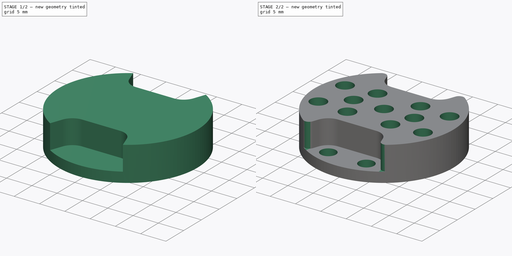
[diagram: build sequence overview — one tinted view per stage of 2, left to right]
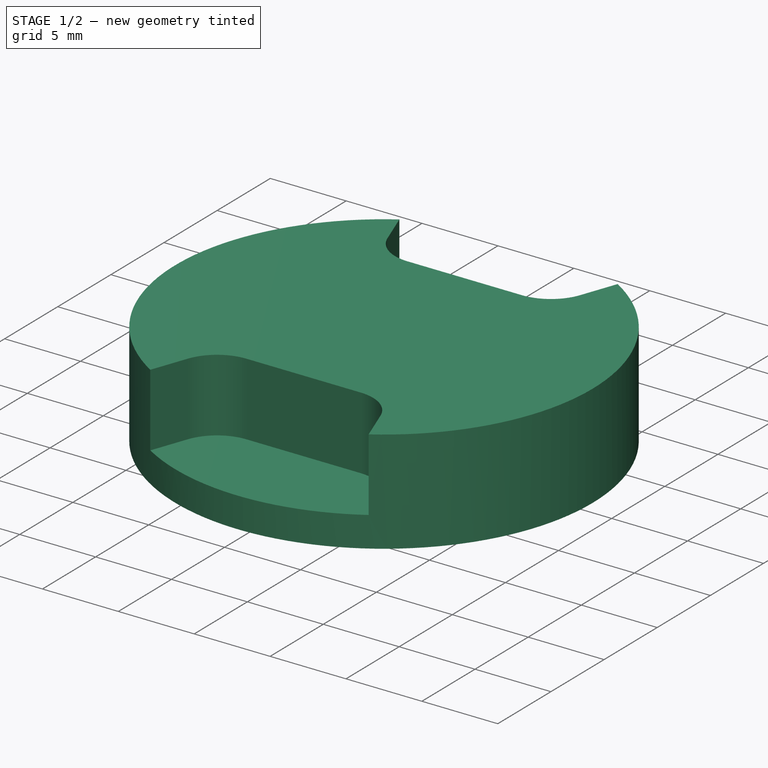
[diagram: stage 1 of 2 — iso view after this stage's code; geometry added in this stage tinted green]
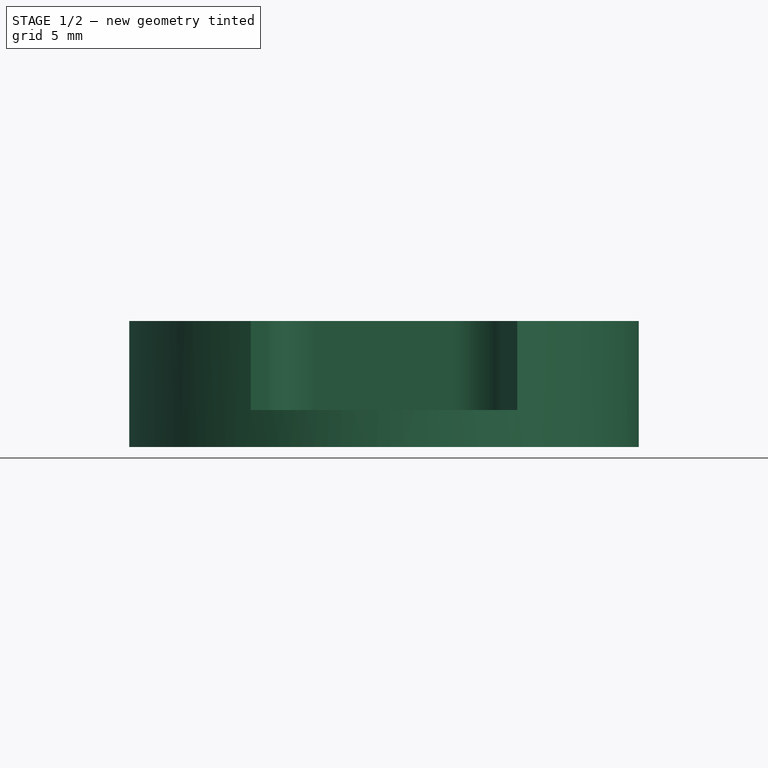
[diagram: stage 1 of 2 — front view after this stage's code; geometry added in this stage tinted green]
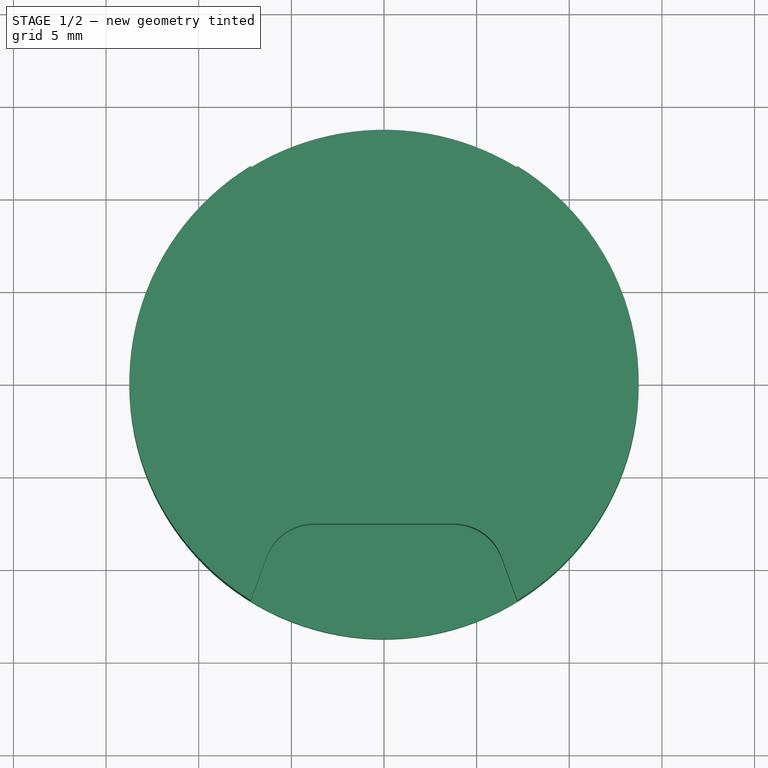
[diagram: stage 1 of 2 — top view after this stage's code; geometry added in this stage tinted green]
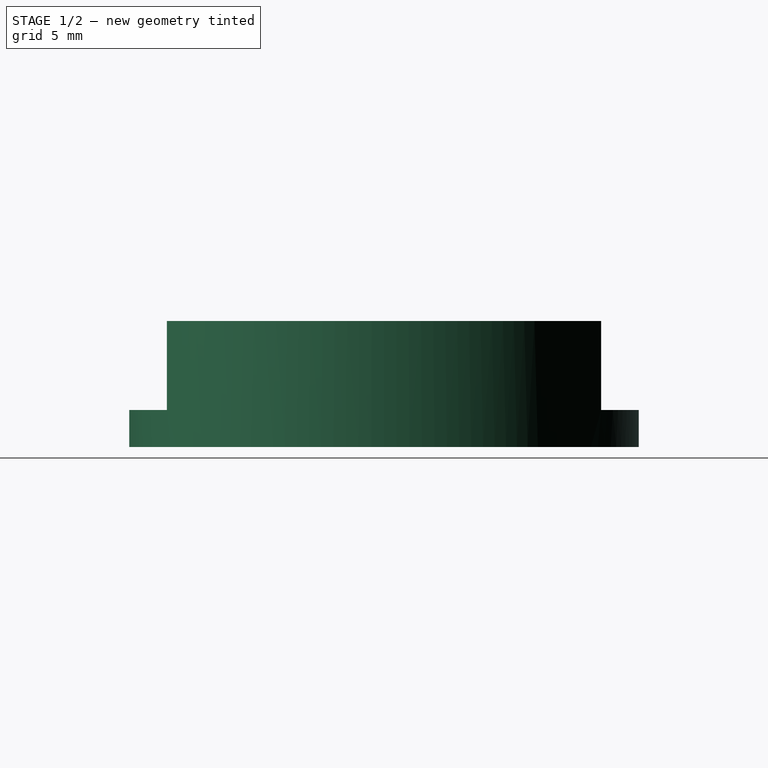
[diagram: stage 1 of 2 — right view after this stage's code; geometry added in this stage tinted green]
FCSTD DOCUMENT  (FreeCAD 0.20R29177 +426 (Git))
Label: top_horn
License: All rights reserved
LicenseURL: http://en.wikipedia.org/wiki/All_rights_reserved
objects: Sketcher::SketchObject×3, PartDesign::Pocket×2, PartDesign::Pad×1, PartDesign::Fillet×1, PartDesign::Body×1
note: 12 computed .brp shape members not serialized (recipe doc carries the construction recipe); baked Part::Feature solids carry a one-line shape summary decoded from their .brp

FEATURE [Sketcher::SketchObject] Sketch
  FullyConstrained = true
  MapMode = 5
  Support = -> [XY_Plane]
  sketch-geometry (1):
    g0: Circle CenterX=0 CenterY=0 CenterZ=0 NormalX=0 NormalY=0 NormalZ=1 AngleXU=0 Radius=13.75
  constraints (2):
    c: Coincident(g0,g-1)
    c: Diameter(g0) = 27.5
FEATURE [PartDesign::Pad] Pad
  Direction = (0,0,1)
  Length = 6.8
  Length2 = 10
  Profile = -> Sketch
  ReferenceAxis = -> Sketch [N_Axis]
  Type = 0
FEATURE [Sketcher::SketchObject] Sketch001
  ExternalGeometry = -> [Pad]
  FullyConstrained = true
  MapMode = 5
  Placement = pos=(0,0,6.8) rot=(0,0,1;0rad)
  Support = -> [Pad]
  sketch-geometry (18):
    g0: Circle CenterX=0 CenterY=0 CenterZ=0 NormalX=0 NormalY=0 NormalZ=1 AngleXU=0 Radius=11
    g1: LineSegment StartX=-3.76222 StartY=10.3366 StartZ=0 EndX=3.76222 EndY=-10.3366 EndZ=0
    g2: LineSegment StartX=3.76222 StartY=10.3366 StartZ=0 EndX=-3.76222 EndY=-10.3366 EndZ=0
    g3: LineSegment StartX=-3.76222 StartY=10.3366 StartZ=0 EndX=3.76222 EndY=10.3366 EndZ=0
    g4: ArcOfCircle CenterX=-3.76222 CenterY=10.3366 CenterZ=0 NormalX=0 NormalY=0 NormalZ=1 AngleXU=0 Radius=2.75 StartAngle=3.49066 EndAngle=4.71239
    g5: ArcOfCircle CenterX=3.76222 CenterY=10.3366 CenterZ=0 NormalX=0 NormalY=0 NormalZ=1 AngleXU=0 Radius=2.75 StartAngle=4.71239 EndAngle=5.93412
    g6: LineSegment StartX=-7.19192 StartY=11.7192 StartZ=0 EndX=-6.34638 EndY=9.39606 EndZ=0
    g7: LineSegment StartX=6.34638 StartY=9.39606 StartZ=0 EndX=7.19192 EndY=11.7192 EndZ=0
    g8: LineSegment StartX=-6.34638 StartY=-9.39606 StartZ=0 EndX=-7.19192 EndY=-11.7192 EndZ=0
    g9: LineSegment StartX=6.34638 StartY=-9.39606 StartZ=0 EndX=7.19192 EndY=-11.7192 EndZ=0
    g10: ArcOfCircle CenterX=-3.76222 CenterY=-10.3366 CenterZ=0 NormalX=0 NormalY=0 NormalZ=1 AngleXU=0 Radius=2.75 StartAngle=1.5708 EndAngle=2.79253
    g11: ArcOfCircle CenterX=3.76222 CenterY=-10.3366 CenterZ=0 NormalX=0 NormalY=0 NormalZ=1 AngleXU=0 Radius=2.75 StartAngle=0.349066 EndAngle=1.5708
    g12: ArcOfCircle CenterX=0 CenterY=0 CenterZ=0 NormalX=0 NormalY=0 NormalZ=1 AngleXU=0 Radius=13.75 StartAngle=1.02037 EndAngle=2.12122
    g13: ArcOfCircle CenterX=0 CenterY=0 CenterZ=0 NormalX=0 NormalY=0 NormalZ=1 AngleXU=0 Radius=13.75 StartAngle=4.16197 EndAngle=5.26281
    g14: LineSegment StartX=-3.76222 StartY=7.58662 StartZ=0 EndX=3.76222 EndY=7.58662 EndZ=0
    g15: Circle CenterX=-3.76222 CenterY=10.3366 CenterZ=0 NormalX=0 NormalY=0 NormalZ=1 AngleXU=0 Radius=2.75
    g16: Circle CenterX=3.76222 CenterY=10.3366 CenterZ=0 NormalX=0 NormalY=0 NormalZ=1 AngleXU=0 Radius=2.75
    g17: LineSegment StartX=-3.76222 StartY=-7.58662 StartZ=0 EndX=3.76222 EndY=-7.58662 EndZ=0
  constraints (44):
    c: Coincident(g0,g-1)
    c: PointOnObject(g1,g0)
    c: PointOnObject(g1,g0)
    c: PointOnObject(g2,g0)
    c: PointOnObject(g2,g0)
    c: Coincident(g3,g1)
    c: Coincident(g3,g2)
    c: Horizontal(g3)
    c: PointOnObject(g0,g1)
    c: PointOnObject(g0,g2)
    c: Diameter(g0) = 22
    c: Coincident(g4,g1)
    c: Coincident(g5,g2)
    c: Equal(g5,g4)
    c: Diameter(g4) = 5.5
    c: Angle(g2,g-2) = 0.349066
    c: Parallel(g2,g7)
    c: Parallel(g6,g1)
    c: Tangent(g4,g6) = -1.5708
    c: Tangent(g5,g7) = -1.5708
    c: Parallel(g2,g8)
    c: Parallel(g9,g1)
    c: Tangent(g11,g9) = 1.5708
    c: Tangent(g10,g8) = -1.5708
    c: Coincident(g10,g2)
    c: Coincident(g11,g1)
    c: Equal(g11,g10)
    c: Coincident(g12,g0)
    c: Coincident(g12,g6)
    c: Coincident(g13,g12)
    c: Coincident(g13,g8)
    c: Equal(g4,g10)
    c: Equal(g12,g-3)
    c: Equal(g13,g-3)
    c: Coincident(g12,g7)
    c: Tangent(g4,g14) = -1.5708
    c: Tangent(g14,g5) = -1.5708
    c: Coincident(g15,g4)
    c: Coincident(g16,g5)
    c: Equal(g15,g4)
    c: Equal(g16,g5)
    c: Coincident(g9,g13)
    c: Tangent(g17,g11) = 1.5708
    c: Tangent(g17,g10) = 1.5708
FEATURE [PartDesign::Pocket] Pocket
  BaseFeature = -> Pad
  Direction = (0,0,-1)
  Length = 4.8
  Length2 = 5
  Profile = -> Sketch001
  ReferenceAxis = -> Sketch001 [N_Axis]
  Type = 0
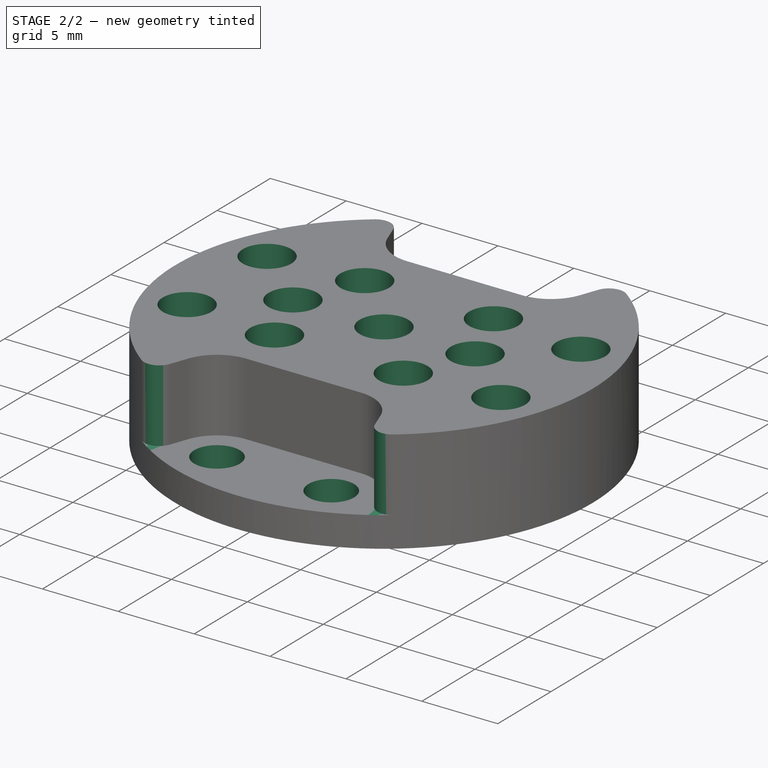
[diagram: stage 2 of 2 — iso view after this stage's code; geometry added in this stage tinted green]
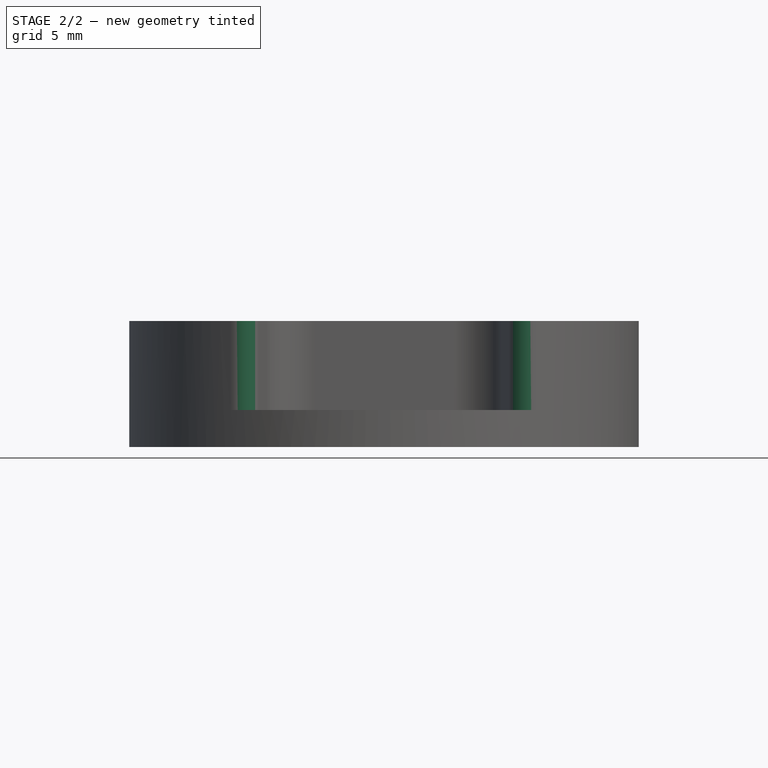
[diagram: stage 2 of 2 — front view after this stage's code; geometry added in this stage tinted green]
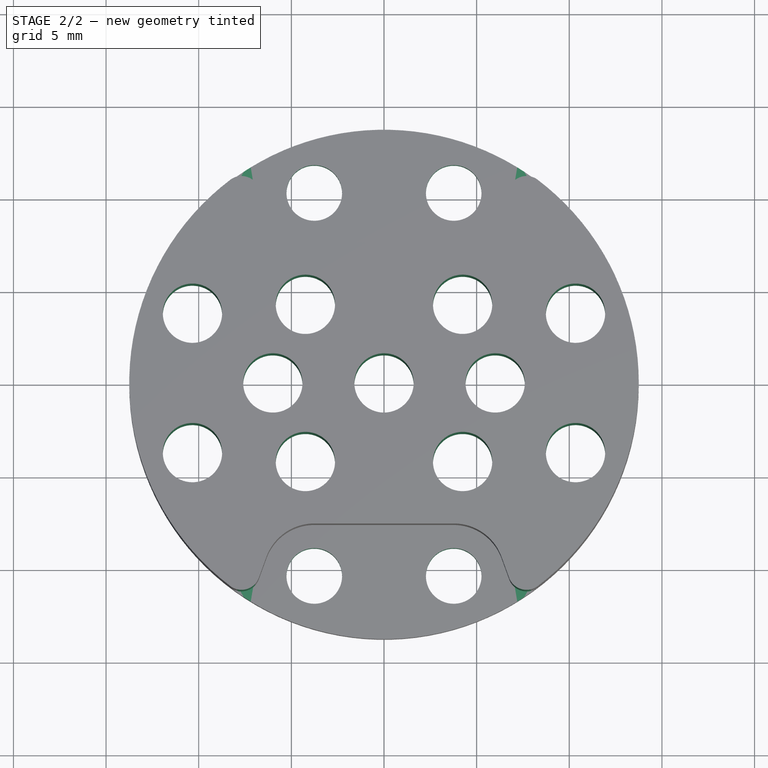
[diagram: stage 2 of 2 — top view after this stage's code; geometry added in this stage tinted green]
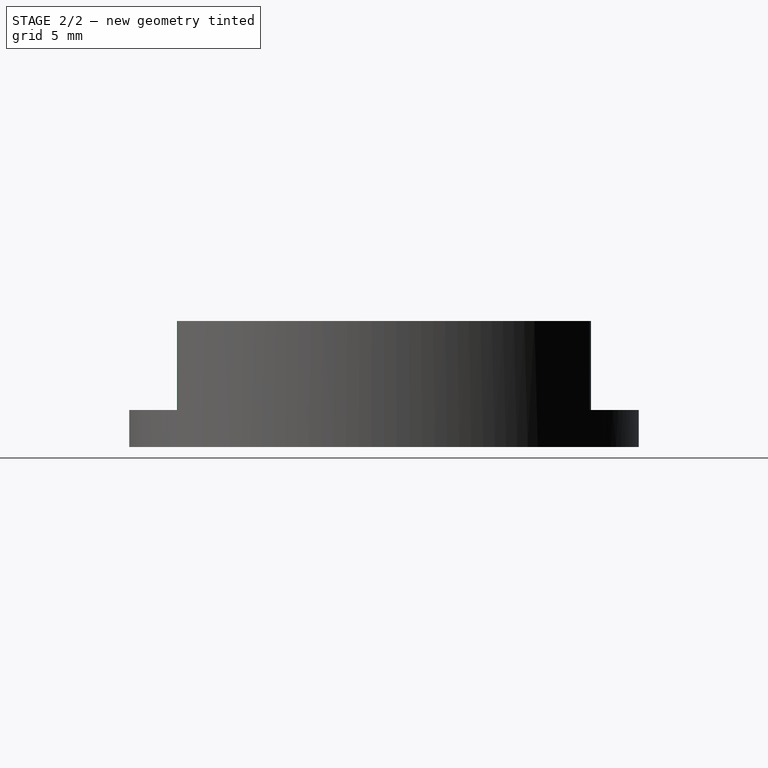
[diagram: stage 2 of 2 — right view after this stage's code; geometry added in this stage tinted green]
FEATURE [Sketcher::SketchObject] Sketch002
  FullyConstrained = true
  MapMode = 5
  Placement = pos=(0,0,6.8) rot=(0,0,1;0rad)
  Support = -> [Pocket]
  sketch-geometry (32):
    g0: Circle CenterX=0 CenterY=0 CenterZ=0 NormalX=0 NormalY=0 NormalZ=1 AngleXU=0 Radius=11
    g1: LineSegment StartX=-10.3366 StartY=3.76222 StartZ=0 EndX=10.3366 EndY=-3.76222 EndZ=0
    g2: Circle CenterX=-10.3366 CenterY=3.76222 CenterZ=0 NormalX=0 NormalY=0 NormalZ=1 AngleXU=0 Radius=1.6
    g3: LineSegment StartX=-10.3366 StartY=-3.76222 StartZ=0 EndX=10.3366 EndY=3.76222 EndZ=0
    g4: LineSegment StartX=-10.3366 StartY=3.76222 StartZ=0 EndX=10.3366 EndY=3.76222 EndZ=0
    g5: Circle CenterX=10.3366 CenterY=3.76222 CenterZ=0 NormalX=0 NormalY=0 NormalZ=1 AngleXU=0 Radius=1.6
    g6: Circle CenterX=10.3366 CenterY=-3.76222 CenterZ=0 NormalX=0 NormalY=0 NormalZ=1 AngleXU=0 Radius=1.6
    g7: Circle CenterX=-10.3366 CenterY=-3.76222 CenterZ=0 NormalX=0 NormalY=0 NormalZ=1 AngleXU=0 Radius=1.6
    g8: LineSegment StartX=-3.76222 StartY=10.3366 StartZ=0 EndX=3.76222 EndY=-10.3366 EndZ=0
    g9: LineSegment StartX=3.76222 StartY=10.3366 StartZ=0 EndX=-3.76222 EndY=-10.3366 EndZ=0
    g10: LineSegment StartX=-3.76222 StartY=10.3366 StartZ=0 EndX=3.76222 EndY=10.3366 EndZ=0
    g11: Circle CenterX=-10.3366 CenterY=3.76222 CenterZ=0 NormalX=0 NormalY=0 NormalZ=1 AngleXU=0 Radius=2.75
    g12: Circle CenterX=-10.3366 CenterY=-3.76222 CenterZ=0 NormalX=0 NormalY=0 NormalZ=1 AngleXU=0 Radius=2.75
    g13: LineSegment StartX=-11 StartY=0 StartZ=0 EndX=11 EndY=0 EndZ=0
    g14: Circle CenterX=3.76222 CenterY=10.3366 CenterZ=0 NormalX=0 NormalY=0 NormalZ=1 AngleXU=0 Radius=1.5
    g15: Circle CenterX=-3.76222 CenterY=10.3366 CenterZ=0 NormalX=0 NormalY=0 NormalZ=1 AngleXU=0 Radius=1.5
    g16: Circle CenterX=-3.76222 CenterY=-10.3366 CenterZ=0 NormalX=0 NormalY=0 NormalZ=1 AngleXU=0 Radius=1.5
    g17: Circle CenterX=3.76222 CenterY=-10.3366 CenterZ=0 NormalX=0 NormalY=0 NormalZ=1 AngleXU=0 Radius=1.5
    g18: Circle CenterX=0 CenterY=0 CenterZ=0 NormalX=0 NormalY=0 NormalZ=1 AngleXU=0 Radius=1.6
    g19: Circle CenterX=-3.76222 CenterY=10.3366 CenterZ=0 NormalX=0 NormalY=0 NormalZ=1 AngleXU=0 Radius=2.75
    g20: Circle CenterX=0 CenterY=0 CenterZ=0 NormalX=0 NormalY=0 NormalZ=1 AngleXU=0 Radius=6
    g21: LineSegment StartX=4.24264 StartY=4.24264 StartZ=0 EndX=-4.24264 EndY=-4.24264 EndZ=0
    g22: LineSegment StartX=-4.24264 StartY=4.24264 StartZ=0 EndX=4.24264 EndY=-4.24264 EndZ=0
    g23: LineSegment StartX=-4.24264 StartY=4.24264 StartZ=0 EndX=4.24264 EndY=4.24264 EndZ=0
    g24: Circle CenterX=-4.24264 CenterY=4.24264 CenterZ=0 NormalX=0 NormalY=0 NormalZ=1 AngleXU=0 Radius=1.6
    g25: Circle CenterX=4.24264 CenterY=4.24264 CenterZ=0 NormalX=0 NormalY=0 NormalZ=1 AngleXU=0 Radius=1.6
    g26: Circle CenterX=4.24264 CenterY=-4.24264 CenterZ=0 NormalX=0 NormalY=0 NormalZ=1 AngleXU=0 Radius=1.6
    g27: Circle CenterX=-4.24264 CenterY=-4.24264 CenterZ=0 NormalX=0 NormalY=0 NormalZ=1 AngleXU=0 Radius=1.6
    g28: Circle CenterX=-4.24264 CenterY=4.24264 CenterZ=0 NormalX=0 NormalY=0 NormalZ=1 AngleXU=0 Radius=2.75
    g29: Circle CenterX=0 CenterY=0 CenterZ=0 NormalX=0 NormalY=0 NormalZ=1 AngleXU=0 Radius=2.75
    g30: Circle CenterX=-6 CenterY=0 CenterZ=0 NormalX=0 NormalY=0 NormalZ=1 AngleXU=0 Radius=1.6
    g31: Circle CenterX=6 CenterY=0 CenterZ=0 NormalX=0 NormalY=0 NormalZ=1 AngleXU=0 Radius=1.6
  constraints (80):
    c: Coincident(g0,g-1)
    c: Diameter(g0) = 22
    c: PointOnObject(g1,g0)
    c: PointOnObject(g1,g0)
    c: PointOnObject(g0,g1)
    c: Coincident(g2,g1)
    c: Diameter(g2) = 3.2
    c: PointOnObject(g3,g0)
    c: PointOnObject(g3,g0)
    c: PointOnObject(g0,g3)
    c: Coincident(g4,g2)
    c: Coincident(g4,g3)
    c: Horizontal(g4)
    c: Coincident(g5,g3)
    c: Coincident(g6,g1)
    c: Coincident(g7,g3)
    c: Equal(g7,g6)
    c: Equal(g6,g5)
    c: Equal(g5,g2)
    c: PointOnObject(g8,g0)
    c: PointOnObject(g8,g0)
    c: PointOnObject(g9,g0)
    c: PointOnObject(g9,g0)
    c: PointOnObject(g0,g9)
    c: PointOnObject(g0,g8)
    c: Coincident(g10,g8)
    c: Coincident(g10,g9)
    c: Horizontal(g10)
    c: Angle(g3,g-2) = 1.22173
    c: Angle(g9,g-2) = 0.349066
    c: Coincident(g11,g2)
    c: Coincident(g12,g7)
    c: Diameter(g11) = 5.5
    c: PointOnObject(g13,g0)
    c: PointOnObject(g13,g0)
    c: Horizontal(g13)
    c: PointOnObject(g0,g13)
    c: Equal(g12,g11)
    c: Coincident(g14,g9)
    c: Coincident(g15,g8)
    c: Coincident(g16,g9)
    c: Coincident(g17,g8)
    c: Coincident(g18,g0)
    c: Equal(g18,g2)
    c: Coincident(g19,g15)
    c: Equal(g19,g11)
    c: Coincident(g20,g18)
    c: Diameter(g20) = 12
    c: PointOnObject(g21,g20)
    c: PointOnObject(g21,g20)
    c: PointOnObject(g22,g20)
    c: PointOnObject(g22,g20)
    c: PointOnObject(g18,g22)
    c: PointOnObject(g18,g21)
    c: Angle(g-2,g22) = 0.785398
    c: Coincident(g23,g22)
    c: Coincident(g23,g21)
    c: Horizontal(g23)
    c: Coincident(g24,g22)
    c: Coincident(g25,g21)
    c: Coincident(g26,g22)
    c: Coincident(g27,g21)
    c: Equal(g2,g24)
    c: Equal(g24,g25)
    c: Equal(g25,g26)
    c: Equal(g26,g27)
    c: Coincident(g28,g24)
    c: Coincident(g29,g18)
    c: Equal(g29,g28)
    c: Equal(g28,g11)
    c: PointOnObject(g30,g13)
    c: PointOnObject(g31,g20)
    c: PointOnObject(g30,g20)
    c: PointOnObject(g31,g13)
    c: Equal(g30,g31)
    c: Equal(g31,g2)
    c: Equal(g15,g14)
    c: Equal(g14,g17)
    c: Equal(g17,g16)
    c: Diameter(g15) = 3
FEATURE [PartDesign::Pocket] Pocket001
  BaseFeature = -> Pocket
  Direction = (0,0,-1)
  Length = 5
  Length2 = 5
  Profile = -> Sketch002
  ReferenceAxis = -> Sketch002 [N_Axis]
  Type = 1
FEATURE [PartDesign::Fillet] Fillet
  Base = -> Pocket001 [Edge6,Edge4,Edge10,Edge8]
  BaseFeature = -> Pocket001
  Radius = 1
  SupportTransform = false
  UseAllEdges = false
FEATURE [PartDesign::Body] Body
  Group = -> [Sketch,Pad,Sketch001,Pocket,Sketch002,Pocket001,Fillet]
  Origin = -> Origin
  Tip = -> Fillet
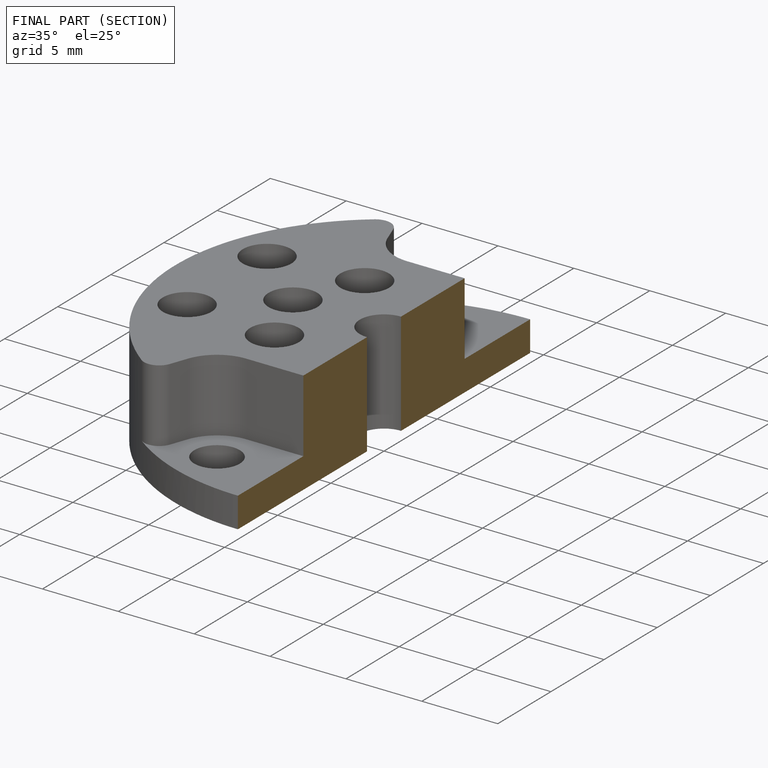
[diagram: finished part — half-section view (interior)]
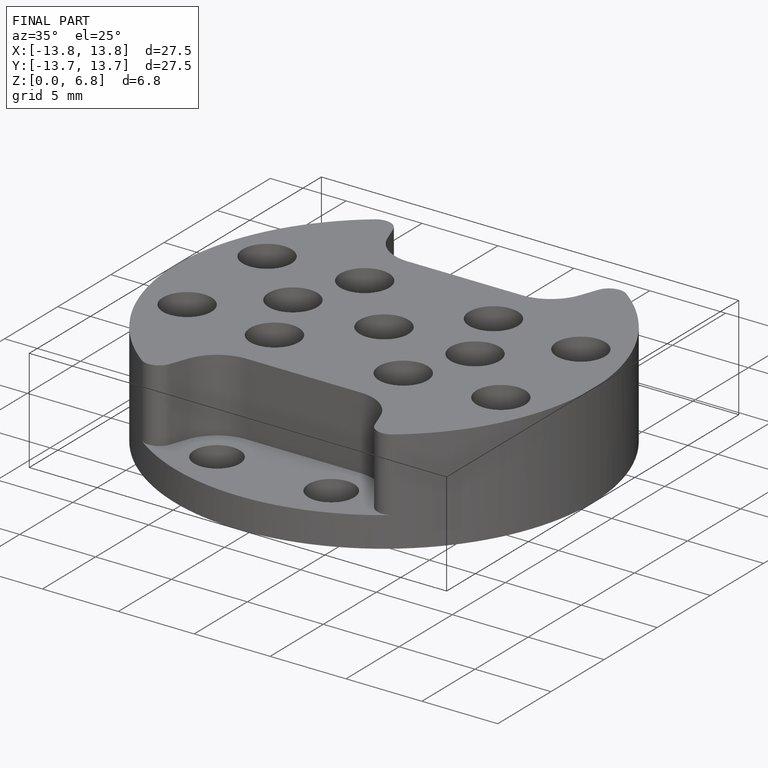
[diagram: finished part — iso view with bounding-box wireframe]
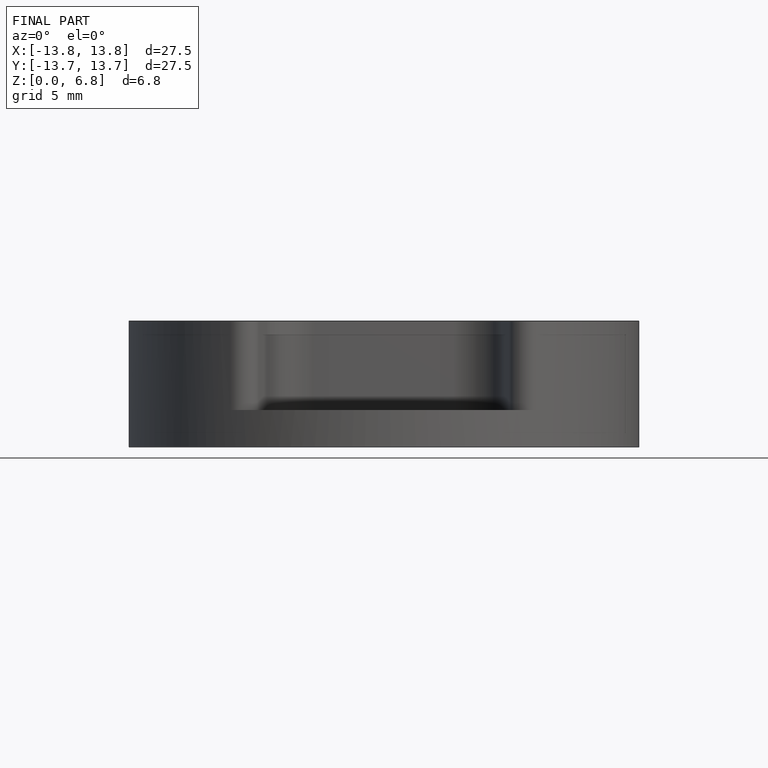
[diagram: finished part — front view with bounding-box wireframe]
